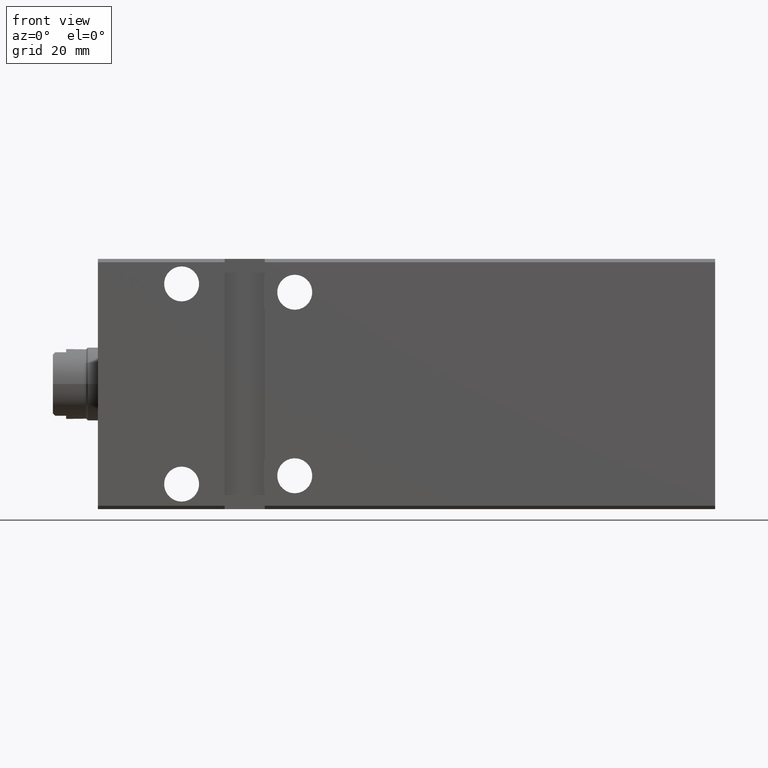
[diagram: clean part render]
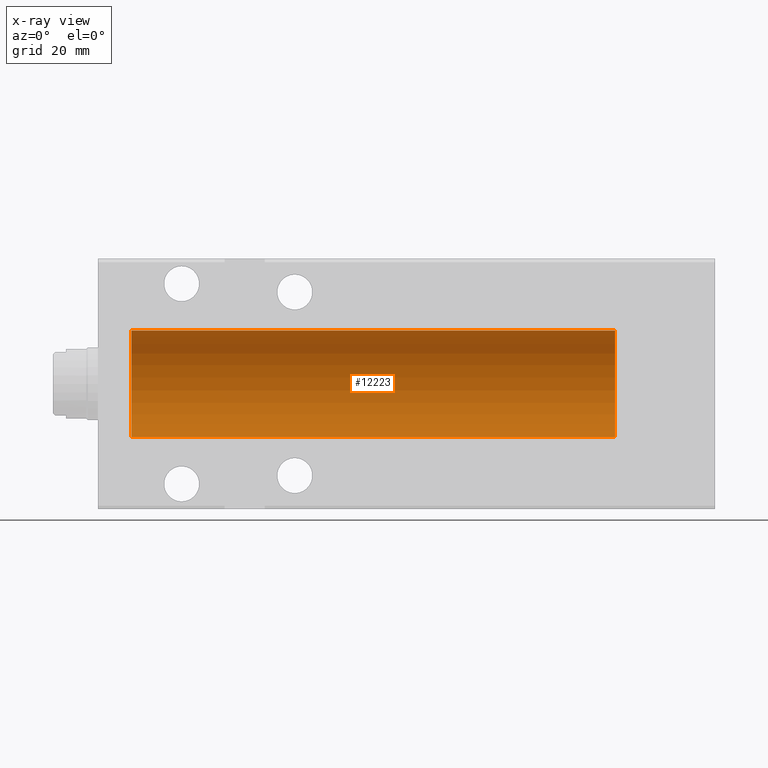
[diagram: x-ray — body ghosted, one internal face saturated and labeled with its STEP entity id]
A machine part, front view, then the same camera in x-ray: the body is ghosted and one INTERNAL B-rep face — a face not visible from any outside direction — is saturated and labeled: STEP entity #12223.
In plain terms, the highlighted cylindrical surface (partial cylindrical patch) has radius 16 mm, axis along (-1, -0, -0).
Its self-contained STEP definition (entity closure, byte-faithful):
#744 = DIRECTION ( 'NONE',  ( 0.000000000000000000, 0.000000000000000000, 1.000000000000000000 ) ) ;
#1281 = AXIS2_PLACEMENT_3D ( 'NONE', #7531, #13697, #744 ) ;
#2463 = DIRECTION ( 'NONE',  ( -1.000000000000000000, -0.000000000000000000, -0.000000000000000000 ) ) ;
#2661 = CARTESIAN_POINT ( 'NONE',  ( 26.99999999999999645, 0.3077040434552391068, -16.00000000000000355 ) ) ;
#3252 = B_SPLINE_CURVE_WITH_KNOTS ( 'NONE', 3,
 ( #30156, #6582, #6378, #26959, #24546, #30542 ),
 .UNSPECIFIED., .F., .F.,
 ( 4, 2, 4 ),
 ( 0.001845745242563113023, 0.002767447188281244030, 0.003689149133999374171 ),
 .UNSPECIFIED. ) ;
#4521 = FACE_OUTER_BOUND ( 'NONE', #21329, .T. ) ;
#5653 = CARTESIAN_POINT ( 'NONE',  ( 27.00000000000000000, 1.959432167375458166E-15, -16.00000000000000000 ) ) ;
#5748 = CARTESIAN_POINT ( 'NONE',  ( 155.0000000000000000, 1.959434878635765131E-15, -16.00000000000000000 ) ) ;
#6183 = VERTEX_POINT ( 'NONE', #24694 ) ;
#6242 = CARTESIAN_POINT ( 'NONE',  ( 26.57910603363460922, 1.786057109949259036, -15.89999999999998970 ) ) ;
#6378 = CARTESIAN_POINT ( 'NONE',  ( 19.03558494715525029, 0.6159808737045033844, -15.99099227927342959 ) ) ;
#6582 = CARTESIAN_POINT ( 'NONE',  ( 19.00000000000000000, 0.3073137169939992308, -16.00000000000000355 ) ) ;
#7531 = CARTESIAN_POINT ( 'NONE',  ( 155.0000000000000000, 0.000000000000000000, 0.000000000000000000 ) ) ;
#8261 = CARTESIAN_POINT ( 'NONE',  ( 155.0000000000000000, 1.959434878635765131E-15, -16.00000000000000000 ) ) ;
#8270 = CARTESIAN_POINT ( 'NONE',  ( 19.42089396636538723, 1.786057109949259036, -15.89999999999998970 ) ) ;
#8475 = LINE ( 'NONE', #26639, #15357 ) ;
#8532 = EDGE_CURVE ( 'NONE', #33545, #12677, #17461, .T. ) ;
#8896 = VECTOR ( 'NONE', #2463, 1000.000000000000000 ) ;
#11647 = EDGE_CURVE ( 'NONE', #33545, #29465, #3252, .T. ) ;
#12021 = CARTESIAN_POINT ( 'NONE',  ( 26.96356619788477360, 0.6204082509210441243, -15.99078302721733102 ) ) ;
#12223 = ADVANCED_FACE ( 'NONE', ( #4521 ), #29666, .F. ) ;
#12677 = VERTEX_POINT ( 'NONE', #28357 ) ;
#13534 = AXIS2_PLACEMENT_3D ( 'NONE', #35274, #23466, #38468 ) ;
#13544 = CARTESIAN_POINT ( 'NONE',  ( 10.00000000000000000, 0.000000000000000000, 0.000000000000000000 ) ) ;
#13697 = DIRECTION ( 'NONE',  ( -1.000000000000000000, 0.000000000000000000, 0.000000000000000000 ) ) ;
#15357 = VECTOR ( 'NONE', #17449, 1000.000000000000000 ) ;
#15711 = EDGE_CURVE ( 'NONE', #23614, #12677, #26280, .T. ) ;
#15932 = DIRECTION ( 'NONE',  ( 0.000000000000000000, 0.000000000000000000, 1.000000000000000000 ) ) ;
#16067 = ORIENTED_EDGE ( 'NONE', *, *, #27872, .F. ) ;
#16849 = CARTESIAN_POINT ( 'NONE',  ( 10.00000000000000000, 0.000000000000000000, 16.00000000000000000 ) ) ;
#17292 = ORIENTED_EDGE ( 'NONE', *, *, #15711, .T. ) ;
#17441 = VERTEX_POINT ( 'NONE', #5748 ) ;
#17449 = DIRECTION ( 'NONE',  ( -1.000000000000000000, -0.000000000000000000, -0.000000000000000000 ) ) ;
#17456 = ORIENTED_EDGE ( 'NONE', *, *, #11647, .T. ) ;
#17461 = LINE ( 'NONE', #32661, #31314 ) ;
#20026 = B_SPLINE_CURVE_WITH_KNOTS ( 'NONE', 3,
 ( #6242, #21602, #39218, #12021, #2661, #5653 ),
 .UNSPECIFIED., .F., .F.,
 ( 4, 2, 4 ),
 ( 0.000000000000000000, 0.0009228726212815549935, 0.001845745242563109553 ),
 .UNSPECIFIED. ) ;
#21231 = VERTEX_POINT ( 'NONE', #33073 ) ;
#21329 = EDGE_LOOP ( 'NONE', ( #30435, #16067, #37136, #17292, #26178, #17456, #25271, #22602 ) ) ;
#21602 = CARTESIAN_POINT ( 'NONE',  ( 26.71770615202116161, 1.508314300261687002, -15.93119902641381991 ) ) ;
#22602 = ORIENTED_EDGE ( 'NONE', *, *, #32800, .T. ) ;
#23466 = DIRECTION ( 'NONE',  ( -1.000000000000000000, -0.000000000000000000, -0.000000000000000000 ) ) ;
#23614 = VERTEX_POINT ( 'NONE', #16849 ) ;
#23628 = DIRECTION ( 'NONE',  ( -1.000000000000000000, -0.000000000000000000, -0.000000000000000000 ) ) ;
#24413 = CARTESIAN_POINT ( 'NONE',  ( 155.0000000000000000, 0.000000000000000000, 16.00000000000000000 ) ) ;
#24546 = CARTESIAN_POINT ( 'NONE',  ( 19.28245879915401417, 1.508644848340497058, -15.93116189573794550 ) ) ;
#24694 = CARTESIAN_POINT ( 'NONE',  ( 26.57910603363460922, 1.786057109949259036, -15.89999999999998970 ) ) ;
#25271 = ORIENTED_EDGE ( 'NONE', *, *, #35720, .F. ) ;
#26178 = ORIENTED_EDGE ( 'NONE', *, *, #8532, .F. ) ;
#26280 = CIRCLE ( 'NONE', #39122, 16.00000000000000000 ) ;
#26639 = CARTESIAN_POINT ( 'NONE',  ( 155.0000000000000000, 1.786057109949259036, -15.89999999999998970 ) ) ;
#26652 = DIRECTION ( 'NONE',  ( -1.000000000000000000, -0.000000000000000000, -0.000000000000000000 ) ) ;
#26959 = CARTESIAN_POINT ( 'NONE',  ( 19.17775111251208386, 1.219193417833760451, -15.95634149554536485 ) ) ;
#27872 = EDGE_CURVE ( 'NONE', #32853, #17441, #28069, .T. ) ;
#28069 = CIRCLE ( 'NONE', #1281, 16.00000000000000000 ) ;
#28357 = CARTESIAN_POINT ( 'NONE',  ( 10.00000000000000000, 1.959434878635765131E-15, -16.00000000000000000 ) ) ;
#28848 = LINE ( 'NONE', #8261, #29975 ) ;
#29465 = VERTEX_POINT ( 'NONE', #8270 ) ;
#29666 = CYLINDRICAL_SURFACE ( 'NONE', #13534, 16.00000000000000000 ) ;
#29975 = VECTOR ( 'NONE', #23628, 1000.000000000000000 ) ;
#30156 = CARTESIAN_POINT ( 'NONE',  ( 19.00000000000000000, 1.959437589885413797E-15, -16.00000000000000000 ) ) ;
#30435 = ORIENTED_EDGE ( 'NONE', *, *, #32756, .F. ) ;
#30542 = CARTESIAN_POINT ( 'NONE',  ( 19.42089396636538723, 1.786057109949259036, -15.89999999999998970 ) ) ;
#31314 = VECTOR ( 'NONE', #26652, 1000.000000000000000 ) ;
#32661 = CARTESIAN_POINT ( 'NONE',  ( 155.0000000000000000, 1.959434878635765131E-15, -16.00000000000000000 ) ) ;
#32756 = EDGE_CURVE ( 'NONE', #17441, #21231, #28848, .T. ) ;
#32800 = EDGE_CURVE ( 'NONE', #6183, #21231, #20026, .T. ) ;
#32813 = EDGE_CURVE ( 'NONE', #32853, #23614, #36788, .T. ) ;
#32853 = VERTEX_POINT ( 'NONE', #33219 ) ;
#33073 = CARTESIAN_POINT ( 'NONE',  ( 27.00000000000000000, 1.959432167375458166E-15, -16.00000000000000000 ) ) ;
#33219 = CARTESIAN_POINT ( 'NONE',  ( 155.0000000000000000, 0.000000000000000000, 16.00000000000000000 ) ) ;
#33545 = VERTEX_POINT ( 'NONE', #39123 ) ;
#35274 = CARTESIAN_POINT ( 'NONE',  ( 155.0000000000000000, 0.000000000000000000, 0.000000000000000000 ) ) ;
#35720 = EDGE_CURVE ( 'NONE', #6183, #29465, #8475, .T. ) ;
#36788 = LINE ( 'NONE', #24413, #8896 ) ;
#37136 = ORIENTED_EDGE ( 'NONE', *, *, #32813, .T. ) ;
#37927 = DIRECTION ( 'NONE',  ( -1.000000000000000000, 0.000000000000000000, 0.000000000000000000 ) ) ;
#38468 = DIRECTION ( 'NONE',  ( 0.000000000000000000, 0.000000000000000000, 1.000000000000000000 ) ) ;
#39122 = AXIS2_PLACEMENT_3D ( 'NONE', #13544, #37927, #15932 ) ;
#39123 = CARTESIAN_POINT ( 'NONE',  ( 19.00000000000000000, 1.959437589885413797E-15, -16.00000000000000000 ) ) ;
#39218 = CARTESIAN_POINT ( 'NONE',  ( 26.82196254941095148, 1.219576022118253888, -15.95627408098855504 ) ) ;